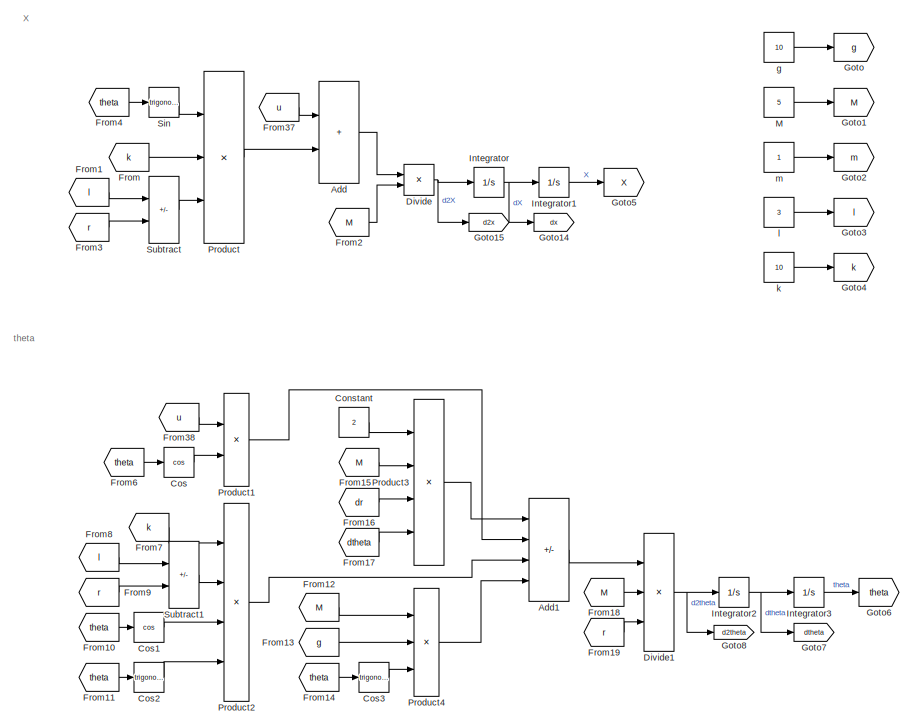
[diagram: root canvas - part 1/2, left side, full height]
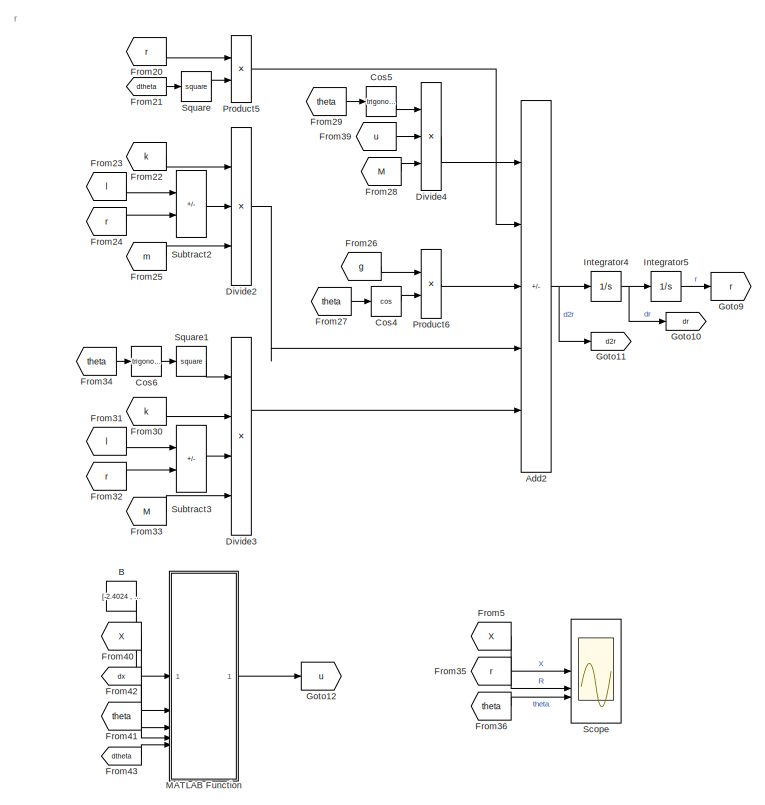
[diagram: root canvas - part 2/2, right side, full height]
MODEL slx_684564c26045
KIND model
CONFIG AbsTol = auto
CONFIG EnableMultiTasking = off
CONFIG FixedStep = 0.1
CONFIG MaxStep = auto
CONFIG MinStep = auto
CONFIG RelTol = 1e-3
CONFIG SampleTimeConstraint = Unconstrained
CONFIG SolverName = FixedStepAuto
CONFIG StartTime = 0.0
CONFIG StopTime = 30
BLOCK [Sum] Add
  IconShape = rectangular
BLOCK [Sum] Add1
  IconShape = rectangular
  Inputs = -+++
BLOCK [Sum] Add2
  IconShape = rectangular
  Inputs = ++-++
BLOCK [Constant] B
  Value = [-2.4024 ,  -7.7500,  158.3048,   65.5000]
BLOCK [Constant] Constant
  Value = 2
BLOCK [Trigonometry] Cos
  Operator = cos
BLOCK [Trigonometry] Cos1
  Operator = cos
BLOCK [Trigonometry] Cos2
BLOCK [Trigonometry] Cos3
BLOCK [Trigonometry] Cos4
  Operator = cos
BLOCK [Trigonometry] Cos5
BLOCK [Trigonometry] Cos6
BLOCK [Product] Divide
  Inputs = */
BLOCK [Product] Divide1
  Inputs = *//
BLOCK [Product] Divide2
  Inputs = **/
BLOCK [Product] Divide3
  Inputs = ***/
BLOCK [Product] Divide4
  Inputs = **/
BLOCK [From] From
  GotoTag = k
BLOCK [From] From1
  GotoTag = l
BLOCK [From] From10
  GotoTag = theta
BLOCK [From] From11
  GotoTag = theta
BLOCK [From] From12
  GotoTag = M
BLOCK [From] From13
  GotoTag = g
BLOCK [From] From14
  GotoTag = theta
BLOCK [From] From15
  GotoTag = M
BLOCK [From] From16
  GotoTag = dr
BLOCK [From] From17
  GotoTag = dtheta
BLOCK [From] From18
  GotoTag = M
BLOCK [From] From19
  GotoTag = r
BLOCK [From] From2
  GotoTag = M
BLOCK [From] From20
  GotoTag = r
BLOCK [From] From21
  GotoTag = dtheta
BLOCK [From] From22
  GotoTag = k
BLOCK [From] From23
  GotoTag = l
BLOCK [From] From24
  GotoTag = r
BLOCK [From] From25
  GotoTag = m
BLOCK [From] From26
  GotoTag = g
BLOCK [From] From27
  GotoTag = theta
BLOCK [From] From28
  GotoTag = M
BLOCK [From] From29
  GotoTag = theta
BLOCK [From] From3
  GotoTag = r
BLOCK [From] From30
  GotoTag = k
BLOCK [From] From31
  GotoTag = l
BLOCK [From] From32
  GotoTag = r
BLOCK [From] From33
  GotoTag = M
BLOCK [From] From34
  GotoTag = theta
BLOCK [From] From35
  GotoTag = r
BLOCK [From] From36
  GotoTag = theta
BLOCK [From] From37
  GotoTag = u
BLOCK [From] From38
  GotoTag = u
BLOCK [From] From39
  GotoTag = u
BLOCK [From] From4
  GotoTag = theta
BLOCK [From] From40
  GotoTag = X
BLOCK [From] From41
  GotoTag = theta
BLOCK [From] From42
  GotoTag = dx
BLOCK [From] From43
  GotoTag = dtheta
BLOCK [From] From5
  GotoTag = X
BLOCK [From] From6
  GotoTag = theta
BLOCK [From] From7
  GotoTag = k
BLOCK [From] From8
  GotoTag = l
BLOCK [From] From9
  GotoTag = r
BLOCK [Goto] Goto
  GotoTag = g
BLOCK [Goto] Goto1
  GotoTag = M
BLOCK [Goto] Goto10
  GotoTag = dr
BLOCK [Goto] Goto11
  GotoTag = d2r
BLOCK [Goto] Goto12
  GotoTag = u
BLOCK [Goto] Goto14
  GotoTag = dx
BLOCK [Goto] Goto15
  GotoTag = d2x
BLOCK [Goto] Goto2
  GotoTag = m
BLOCK [Goto] Goto3
  GotoTag = l
BLOCK [Goto] Goto4
  GotoTag = k
BLOCK [Goto] Goto5
  GotoTag = X
BLOCK [Goto] Goto6
  GotoTag = theta
BLOCK [Goto] Goto7
  GotoTag = dtheta
BLOCK [Goto] Goto8
  GotoTag = d2theta
BLOCK [Goto] Goto9
  GotoTag = r
BLOCK [Integrator] Integrator
BLOCK [Integrator] Integrator1
BLOCK [Integrator] Integrator2
BLOCK [Integrator] Integrator3
  InitialCondition = 0.1
BLOCK [Integrator] Integrator4
BLOCK [Integrator] Integrator5
  InitialCondition = 2
BLOCK [Constant] M
  Value = 5
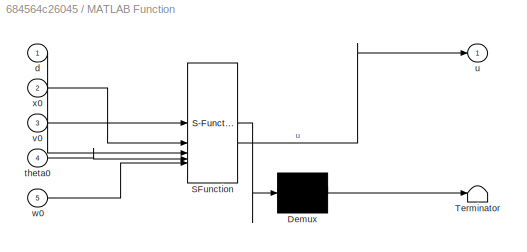
BLOCK [SubSystem] MATLAB Function
  ErrorFcn = Stateflow.Translate.translate
  PermitHierarchicalResolution = ExplicitOnly
  SFBlockType = MATLAB Function
  TreatAsAtomicUnit = on
BLOCK [Demux] MATLAB Function/ Demux 
  Outputs = 1
BLOCK [S-Function] MATLAB Function/ SFunction 
  EnableBusSupport = on
  FunctionName = sf_sfun
  PortCounts = [5 2]
  SFcnIsStateOwnerBlock = off
  SFunctionDeploymentMode = off
  Tag = Stateflow S-Function 2
BLOCK [Terminator] MATLAB Function/ Terminator 
BLOCK [Inport] MATLAB Function/d
BLOCK [Inport] MATLAB Function/theta0
  Port = 4
BLOCK [Outport] MATLAB Function/u
BLOCK [Inport] MATLAB Function/v0
  Port = 3
BLOCK [Inport] MATLAB Function/w0
  Port = 5
BLOCK [Inport] MATLAB Function/x0
  Port = 2
BLOCK [Product] Product
  Inputs = 3
BLOCK [Product] Product1
BLOCK [Product] Product2
  Inputs = 4
BLOCK [Product] Product3
  Inputs = 4
BLOCK [Product] Product4
  Inputs = 3
BLOCK [Product] Product5
BLOCK [Product] Product6
BLOCK [Scope] Scope
  Floating = off
  NumInputPorts = 3
  ScopeSpecificationString = Simulink.scopes.TimeScopeBlockCfg('CurrentConfiguration', extmgr.ConfigurationSet(extmgr.Configuration('Core','General UI',true),extmgr.Configuration('Core','Source UI',true),extmgr.Configuration('Sources','WiredSimulink',true),extmgr.Configuration('Visuals','Time Domain',true,'SerializedDisplays',{struct('MinYLimReal','-1.16208','MaxYLimReal','2.36643','YLabelReal','','MinYLimMag','0.00000','MaxY...<+1483ch>
BLOCK [Trigonometry] Sin
BLOCK [Math] Square
  Operator = square
BLOCK [Math] Square1
  Operator = square
BLOCK [Sum] Subtract
  IconShape = rectangular
  Inputs = +-
BLOCK [Sum] Subtract1
  IconShape = rectangular
  Inputs = +-
BLOCK [Sum] Subtract2
  IconShape = rectangular
  Inputs = +-
BLOCK [Sum] Subtract3
  IconShape = rectangular
  Inputs = +-
BLOCK [Constant] g
  Value = 10
BLOCK [Constant] k
  Value = 10
BLOCK [Constant] l
  Value = 3
BLOCK [Constant] m
ANNOTATION (root): X
ANNOTATION (root): r
ANNOTATION (root): theta
LINE Add1:1 -> Divide1:1
NET Add2:1 -> Goto11:1, Integrator4:1
LINE Add:1 -> Divide:1
LINE B:1 -> MATLAB Function:1
LINE Constant:1 -> Product3:1
LINE Cos1:1 -> Product2:3
LINE Cos2:1 -> Product2:4
LINE Cos3:1 -> Product4:3
LINE Cos4:1 -> Product6:2
LINE Cos5:1 -> Divide4:1
LINE Cos6:1 -> Square1:1
LINE Cos:1 -> Product1:2
NET Divide1:1 -> Goto8:1, Integrator2:1
LINE Divide2:1 -> Add2:4
LINE Divide3:1 -> Add2:5
LINE Divide4:1 -> Add2:1
NET Divide:1 -> Goto15:1, Integrator:1
LINE From10:1 -> Cos1:1
LINE From11:1 -> Cos2:1
LINE From12:1 -> Product4:1
LINE From13:1 -> Product4:2
LINE From14:1 -> Cos3:1
LINE From15:1 -> Product3:2
LINE From16:1 -> Product3:3
LINE From17:1 -> Product3:4
LINE From18:1 -> Divide1:2
LINE From19:1 -> Divide1:3
LINE From1:1 -> Subtract:1
LINE From20:1 -> Product5:1
LINE From21:1 -> Square:1
LINE From22:1 -> Divide2:1
LINE From23:1 -> Subtract2:1
LINE From24:1 -> Subtract2:2
LINE From25:1 -> Divide2:3
LINE From26:1 -> Product6:1
LINE From27:1 -> Cos4:1
LINE From28:1 -> Divide4:3
LINE From29:1 -> Cos5:1
LINE From2:1 -> Divide:2
LINE From30:1 -> Divide3:2
LINE From31:1 -> Subtract3:1
LINE From32:1 -> Subtract3:2
LINE From33:1 -> Divide3:4
LINE From34:1 -> Cos6:1
LINE From35:1 -> Scope:2
LINE From36:1 -> Scope:3
LINE From37:1 -> Add:1
LINE From38:1 -> Product1:1
LINE From39:1 -> Divide4:2
LINE From3:1 -> Subtract:2
LINE From40:1 -> MATLAB Function:2
LINE From41:1 -> MATLAB Function:4
LINE From42:1 -> MATLAB Function:3
LINE From43:1 -> MATLAB Function:5
LINE From4:1 -> Sin:1
LINE From5:1 -> Scope:1
LINE From6:1 -> Cos:1
LINE From7:1 -> Product2:1
LINE From8:1 -> Subtract1:1
LINE From9:1 -> Subtract1:2
LINE From:1 -> Product:2
LINE Integrator1:1 -> Goto5:1
NET Integrator2:1 -> Goto7:1, Integrator3:1
LINE Integrator3:1 -> Goto6:1
NET Integrator4:1 -> Goto10:1, Integrator5:1
LINE Integrator5:1 -> Goto9:1
NET Integrator:1 -> Goto14:1, Integrator1:1
LINE M:1 -> Goto1:1
LINE MATLAB Function:1 -> Goto12:1
LINE Product1:1 -> Add1:2
LINE Product2:1 -> Add1:3
LINE Product3:1 -> Add1:1
LINE Product4:1 -> Add1:4
LINE Product5:1 -> Add2:2
LINE Product6:1 -> Add2:3
LINE Product:1 -> Add:2
LINE Sin:1 -> Product:1
LINE Square1:1 -> Divide3:1
LINE Square:1 -> Product5:2
LINE Subtract1:1 -> Product2:2
LINE Subtract2:1 -> Divide2:2
LINE Subtract3:1 -> Divide3:3
LINE Subtract:1 -> Product:3
LINE g:1 -> Goto:1
LINE k:1 -> Goto4:1
LINE l:1 -> Goto3:1
LINE m:1 -> Goto2:1
note: NET lines group one-source signal fan-out (src -> all destinations, sorted); 1:1 wires keep LINE
CHART MATLAB Function states=1 transitions=1
  STATE_LABEL 'eML_blk_kernel()'
  STATE_LABEL 'SCRIPT:\nfunction u = fcn(d, x0, v0, theta0,w0)\nX=[x0-0; v0-0; theta0-0; w0-0];\np=dot(d,X);\nu=-p;\nend'
CHART  states=0 transitions=0
